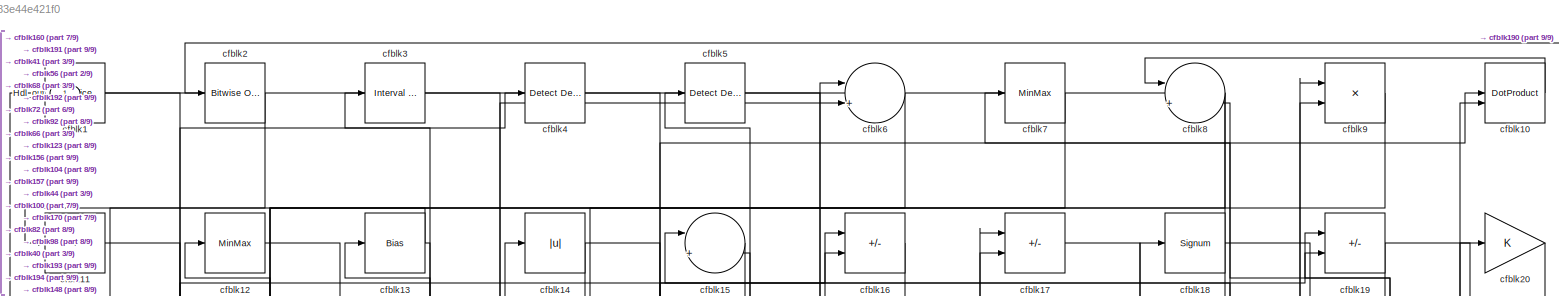
[diagram: root canvas - part 1/9, full width, top band]
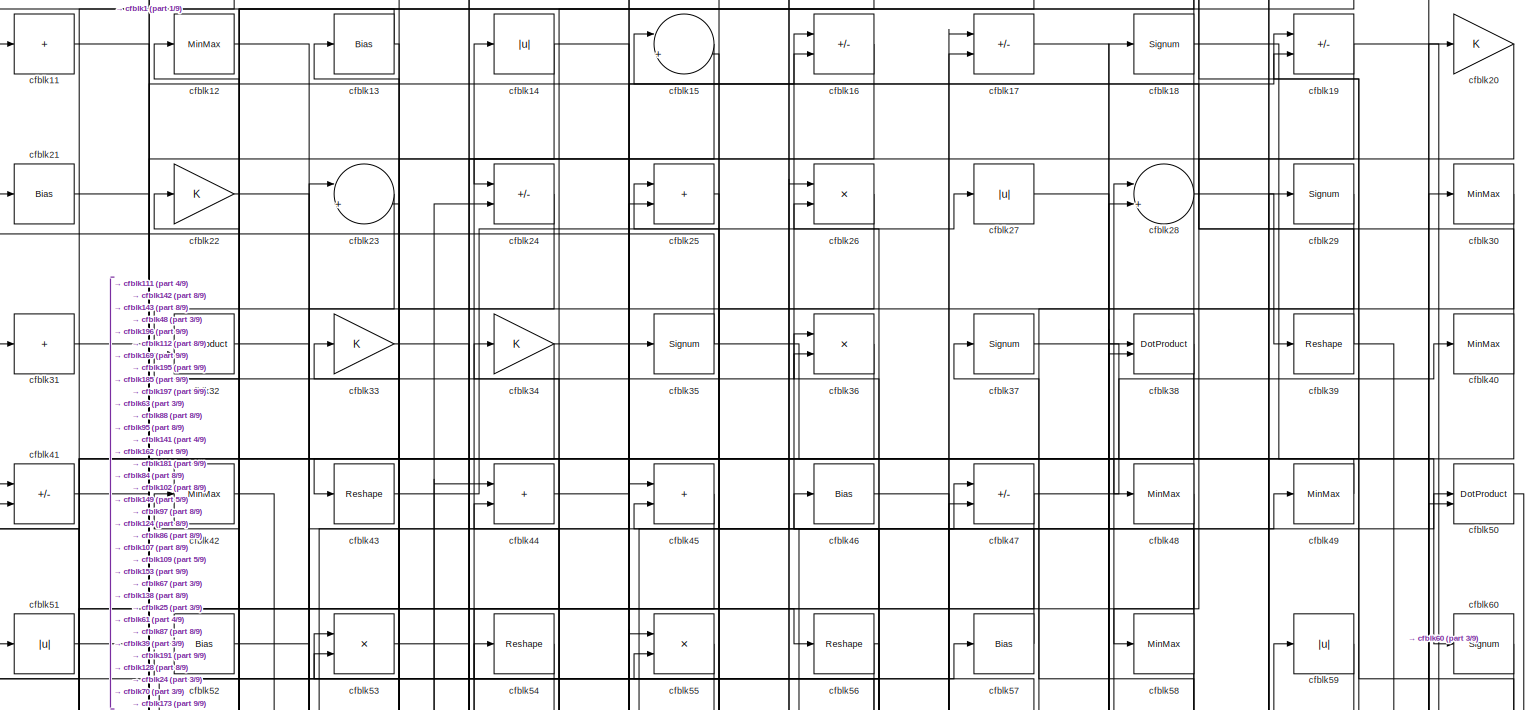
[diagram: root canvas - part 2/9, full width, top band]
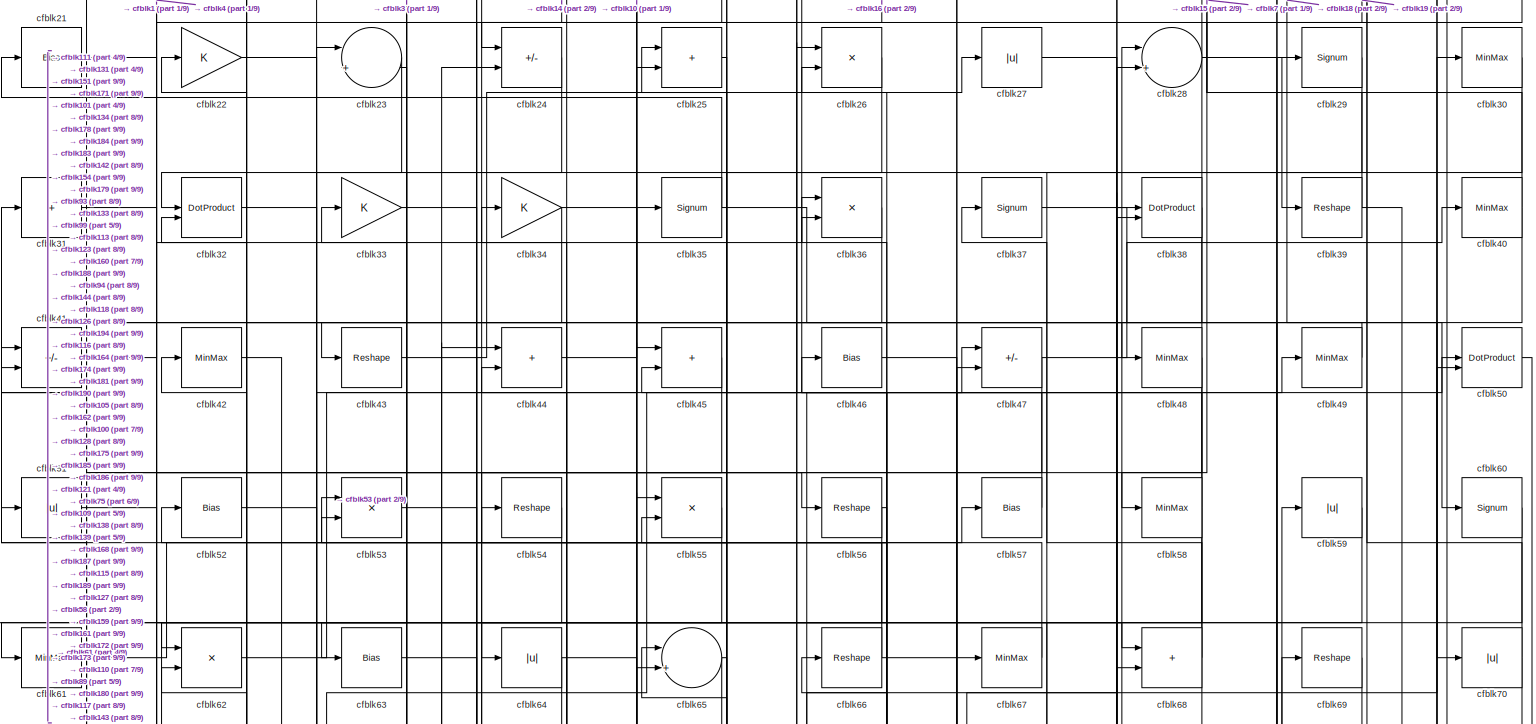
[diagram: root canvas - part 3/9, full width, top band]
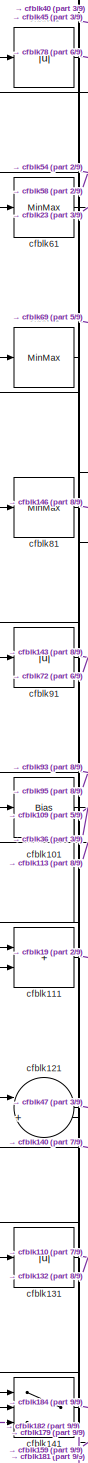
[diagram: root canvas - part 4/9, middle left region]
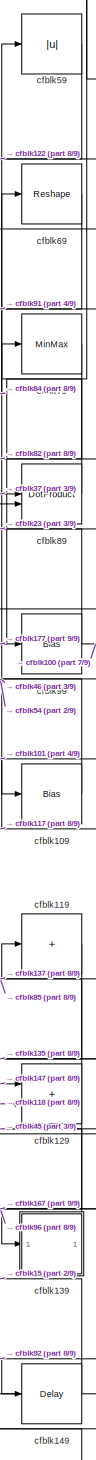
[diagram: root canvas - part 5/9, middle right region]
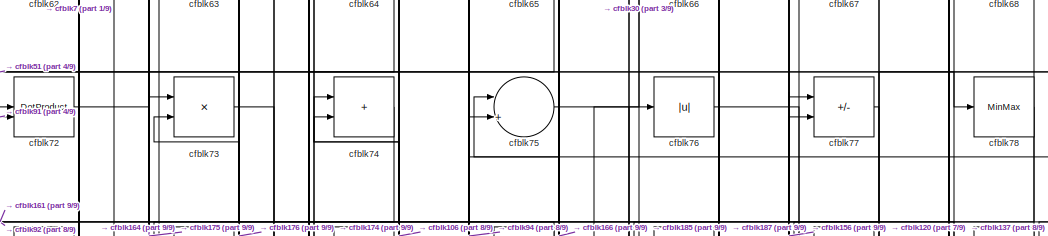
[diagram: root canvas - part 6/9, central region]
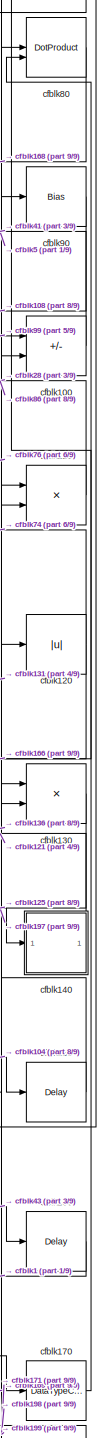
[diagram: root canvas - part 7/9, middle right region]
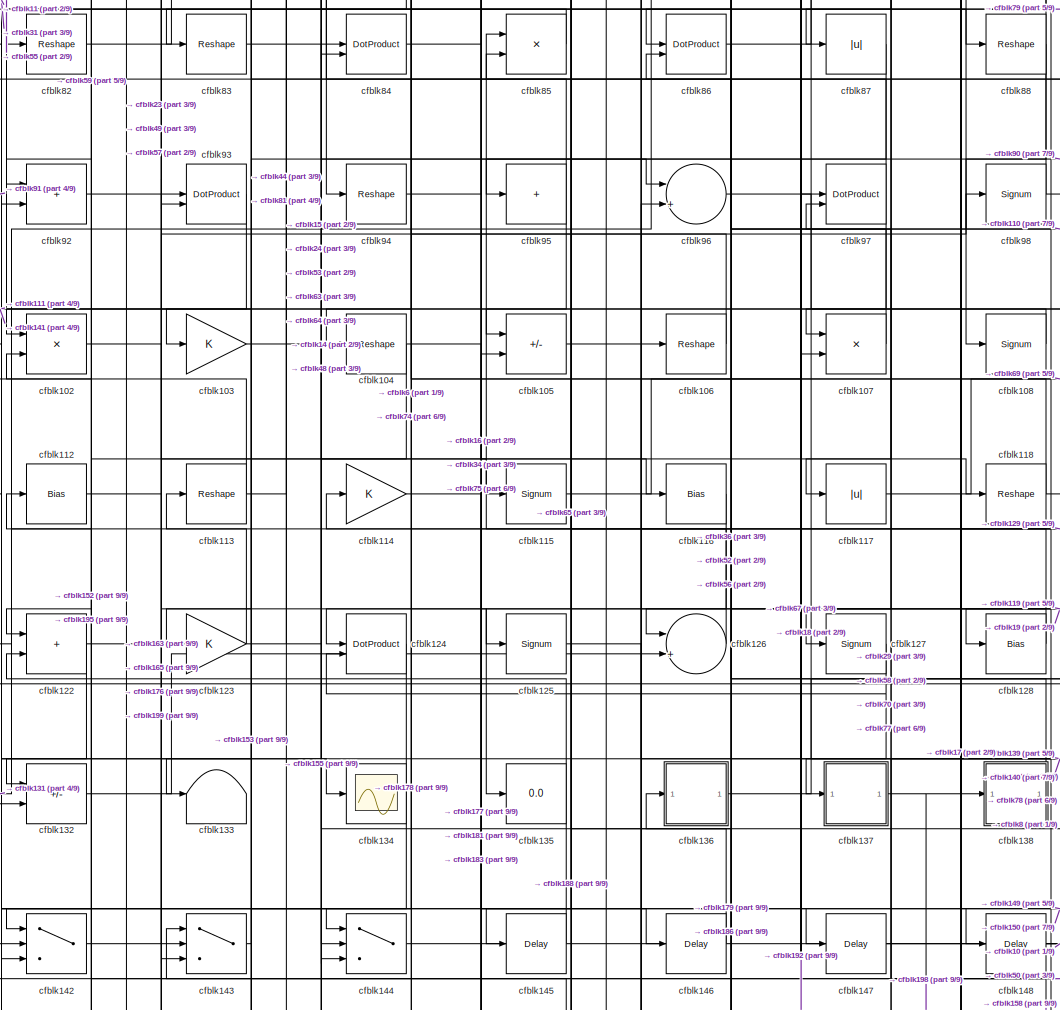
[diagram: root canvas - part 8/9, central region]
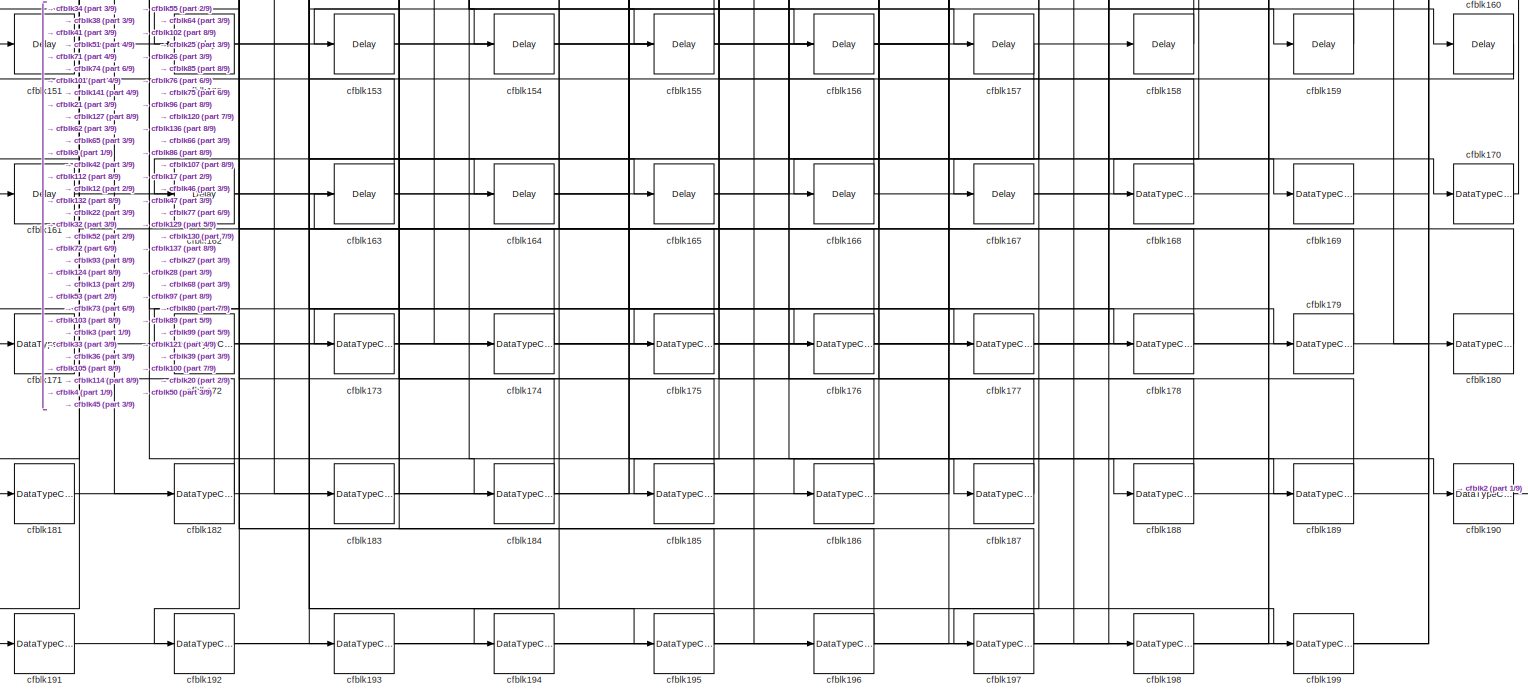
[diagram: root canvas - part 9/9, full width, bottom band]
MODEL slx_d83e44e421f0
KIND model
CONFIG AbsTol = auto
CONFIG EnableMultiTasking = off
CONFIG FixedStep = auto
CONFIG MaxStep = auto
CONFIG MinStep = auto
CONFIG RelTol = 1e-3
CONFIG SampleTimeConstraint = Unconstrained
CONFIG SolverName = VariableStepAuto
CONFIG StartTime = 0.0
CONFIG StopTime = 10.0
BLOCK [Outport] Hdl_out
  OutDataTypeStr = uint8
BLOCK [Reference] cfblk1  REF=hdlsllib/Logic and Bit
Operations/Bit Slice
  SourceBlock = hdlsllib/Logic and Bit\nOperations/Bit Slice
  SourceType = Bit Slice
BLOCK [DotProduct] cfblk10
  OutDataTypeStr = uint8
BLOCK [Sum] cfblk100
  IconShape = rectangular
  Inputs = +-
  OutDataTypeStr = uint8
BLOCK [Bias] cfblk101
  Bias = 0.0
  SaturateOnIntegerOverflow = off
BLOCK [Product] cfblk102
  Inputs = */
  OutDataTypeStr = uint8
  RndMeth = Zero
  SaturateOnIntegerOverflow = on
BLOCK [Gain] cfblk103
  OutDataTypeStr = uint8
BLOCK [Reshape] cfblk104
BLOCK [Sum] cfblk105
  IconShape = rectangular
  Inputs = +-
  OutDataTypeStr = uint8
BLOCK [Reshape] cfblk106
BLOCK [Product] cfblk107
  Inputs = */
  OutDataTypeStr = uint8
  RndMeth = Zero
  SaturateOnIntegerOverflow = on
BLOCK [Signum] cfblk108
BLOCK [Bias] cfblk109
  Bias = 0.0
  SaturateOnIntegerOverflow = off
BLOCK [Sum] cfblk11
  IconShape = rectangular
  Inputs = +
  OutDataTypeStr = uint8
BLOCK [Product] cfblk110
  Inputs = */
  OutDataTypeStr = uint8
  RndMeth = Zero
  SaturateOnIntegerOverflow = on
BLOCK [Sum] cfblk111
  IconShape = rectangular
  OutDataTypeStr = uint8
BLOCK [Bias] cfblk112
  Bias = 0.0
  SaturateOnIntegerOverflow = off
BLOCK [Reshape] cfblk113
BLOCK [Gain] cfblk114
  OutDataTypeStr = uint8
BLOCK [Signum] cfblk115
BLOCK [Bias] cfblk116
  Bias = 0.0
  SaturateOnIntegerOverflow = off
BLOCK [Abs] cfblk117
  OutDataTypeStr = uint8
  SaturateOnIntegerOverflow = off
BLOCK [Reshape] cfblk118
BLOCK [Sum] cfblk119
  IconShape = rectangular
  Inputs = +
  OutDataTypeStr = uint8
BLOCK [MinMax] cfblk12
  OutDataTypeStr = uint8
BLOCK [Abs] cfblk120
  OutDataTypeStr = uint8
  SaturateOnIntegerOverflow = off
BLOCK [Sum] cfblk121
  Inputs = |++
  OutDataTypeStr = uint8
BLOCK [Sum] cfblk122
  IconShape = rectangular
  OutDataTypeStr = uint8
BLOCK [Gain] cfblk123
  OutDataTypeStr = uint8
BLOCK [DotProduct] cfblk124
  OutDataTypeStr = uint8
BLOCK [Signum] cfblk125
BLOCK [Sum] cfblk126
  Inputs = |++
  OutDataTypeStr = uint8
BLOCK [Signum] cfblk127
BLOCK [Bias] cfblk128
  Bias = 0.0
  SaturateOnIntegerOverflow = off
BLOCK [Sum] cfblk129
  IconShape = rectangular
  OutDataTypeStr = uint8
BLOCK [Bias] cfblk13
  Bias = 0.0
  SaturateOnIntegerOverflow = off
BLOCK [Product] cfblk130
  Inputs = */
  OutDataTypeStr = uint8
  RndMeth = Zero
  SaturateOnIntegerOverflow = on
BLOCK [Abs] cfblk131
  OutDataTypeStr = uint8
  SaturateOnIntegerOverflow = off
BLOCK [Sum] cfblk132
  IconShape = rectangular
  Inputs = +-
  OutDataTypeStr = uint8
BLOCK [Terminator] cfblk133
BLOCK [Scope] cfblk134
  Floating = off
  NumInputPorts = 1
  ScopeSpecificationString = Simulink.scopes.TimeScopeBlockCfg('CurrentConfiguration', extmgr.ConfigurationSet(extmgr.Configuration('Core','General UI',true),extmgr.Configuration('Core','Source UI',true),extmgr.Configuration('Sources','WiredSimulink',true,'DataLoggingVariableName','ScopeData2','DataLoggingSaveFormat','Array','DataLoggingLimitDataPoints',true,'DataLoggingDecimation','1'),extmgr.Configuration('Visuals','Time Do...<+868ch>
BLOCK [Display] cfblk135
  Decimation = 1
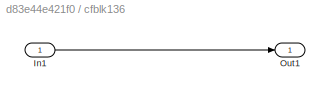
BLOCK [SubSystem] cfblk136
  LibrarySourceBlock = hdlsllib/Ports &\nSubsystems/Subsystem
BLOCK [Inport] cfblk136/In1
BLOCK [Outport] cfblk136/Out1
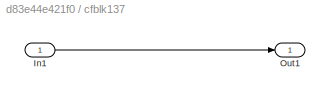
BLOCK [SubSystem] cfblk137
  LibrarySourceBlock = hdlsllib/Ports &\nSubsystems/Subsystem
BLOCK [Inport] cfblk137/In1
BLOCK [Outport] cfblk137/Out1
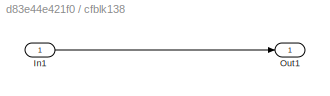
BLOCK [SubSystem] cfblk138
  LibrarySourceBlock = hdlsllib/Ports &\nSubsystems/Subsystem
BLOCK [Inport] cfblk138/In1
BLOCK [Outport] cfblk138/Out1
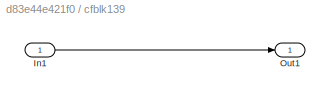
BLOCK [SubSystem] cfblk139
  LibrarySourceBlock = hdlsllib/Ports &\nSubsystems/Subsystem
BLOCK [Inport] cfblk139/In1
BLOCK [Outport] cfblk139/Out1
BLOCK [Abs] cfblk14
  OutDataTypeStr = uint8
  SaturateOnIntegerOverflow = off
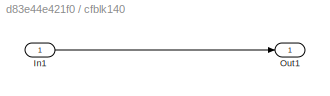
BLOCK [SubSystem] cfblk140
  LibrarySourceBlock = hdlsllib/Ports &\nSubsystems/Subsystem
BLOCK [Inport] cfblk140/In1
BLOCK [Outport] cfblk140/Out1
BLOCK [Switch] cfblk141
  InputSameDT = off
  OutDataTypeStr = uint8
  SaturateOnIntegerOverflow = off
BLOCK [Switch] cfblk142
  InputSameDT = off
  OutDataTypeStr = uint8
  SaturateOnIntegerOverflow = off
BLOCK [Switch] cfblk143
  InputSameDT = off
  OutDataTypeStr = uint8
  SaturateOnIntegerOverflow = off
BLOCK [Switch] cfblk144
  InputSameDT = off
  OutDataTypeStr = uint8
  SaturateOnIntegerOverflow = off
BLOCK [Delay] cfblk145
  InputPortMap = u0
  SampleTime = 1
BLOCK [Delay] cfblk146
  InputPortMap = u0
  SampleTime = 1
BLOCK [Delay] cfblk147
  InputPortMap = u0
  SampleTime = 1
BLOCK [Delay] cfblk148
  InputPortMap = u0
  SampleTime = 1
BLOCK [Delay] cfblk149
  InputPortMap = u0
  SampleTime = 1
BLOCK [Sum] cfblk15
  Inputs = |++
  OutDataTypeStr = uint8
BLOCK [Delay] cfblk150
  InputPortMap = u0
  SampleTime = 1
BLOCK [Delay] cfblk151
  InputPortMap = u0
  SampleTime = 1
BLOCK [Delay] cfblk152
  InputPortMap = u0
  SampleTime = 1
BLOCK [Delay] cfblk153
  InputPortMap = u0
  SampleTime = 1
BLOCK [Delay] cfblk154
  InputPortMap = u0
  SampleTime = 1
BLOCK [Delay] cfblk155
  InputPortMap = u0
  SampleTime = 1
BLOCK [Delay] cfblk156
  InputPortMap = u0
  SampleTime = 1
BLOCK [Delay] cfblk157
  InputPortMap = u0
  SampleTime = 1
BLOCK [Delay] cfblk158
  InputPortMap = u0
  SampleTime = 1
BLOCK [Delay] cfblk159
  InputPortMap = u0
  SampleTime = 1
BLOCK [Sum] cfblk16
  IconShape = rectangular
  Inputs = +-
  OutDataTypeStr = uint8
BLOCK [Delay] cfblk160
  InputPortMap = u0
  SampleTime = 1
BLOCK [Delay] cfblk161
  InputPortMap = u0
  SampleTime = 1
BLOCK [Delay] cfblk162
  InputPortMap = u0
  SampleTime = 1
BLOCK [Delay] cfblk163
  InputPortMap = u0
  SampleTime = 1
BLOCK [Delay] cfblk164
  InputPortMap = u0
  SampleTime = 1
BLOCK [Delay] cfblk165
  InputPortMap = u0
  SampleTime = 1
BLOCK [Delay] cfblk166
  InputPortMap = u0
  SampleTime = 1
BLOCK [Delay] cfblk167
  InputPortMap = u0
  SampleTime = 1
BLOCK [DataTypeConversion] cfblk168
  OutDataTypeStr = uint8
  RndMeth = Floor
  SaturateOnIntegerOverflow = off
BLOCK [DataTypeConversion] cfblk169
  OutDataTypeStr = uint8
  RndMeth = Floor
  SaturateOnIntegerOverflow = off
BLOCK [Sum] cfblk17
  IconShape = rectangular
  Inputs = +-
  OutDataTypeStr = uint8
BLOCK [DataTypeConversion] cfblk170
  OutDataTypeStr = uint8
  RndMeth = Floor
  SaturateOnIntegerOverflow = off
BLOCK [DataTypeConversion] cfblk171
  OutDataTypeStr = uint8
  RndMeth = Floor
  SaturateOnIntegerOverflow = off
BLOCK [DataTypeConversion] cfblk172
  OutDataTypeStr = uint8
  RndMeth = Floor
  SaturateOnIntegerOverflow = off
BLOCK [DataTypeConversion] cfblk173
  OutDataTypeStr = uint8
  RndMeth = Floor
  SaturateOnIntegerOverflow = off
BLOCK [DataTypeConversion] cfblk174
  OutDataTypeStr = uint8
  RndMeth = Floor
  SaturateOnIntegerOverflow = off
BLOCK [DataTypeConversion] cfblk175
  OutDataTypeStr = uint8
  RndMeth = Floor
  SaturateOnIntegerOverflow = off
BLOCK [DataTypeConversion] cfblk176
  OutDataTypeStr = uint8
  RndMeth = Floor
  SaturateOnIntegerOverflow = off
BLOCK [DataTypeConversion] cfblk177
  OutDataTypeStr = uint8
  RndMeth = Floor
  SaturateOnIntegerOverflow = off
BLOCK [DataTypeConversion] cfblk178
  OutDataTypeStr = uint8
  RndMeth = Floor
  SaturateOnIntegerOverflow = off
BLOCK [DataTypeConversion] cfblk179
  OutDataTypeStr = uint8
  RndMeth = Floor
  SaturateOnIntegerOverflow = off
BLOCK [Signum] cfblk18
BLOCK [DataTypeConversion] cfblk180
  OutDataTypeStr = uint8
  RndMeth = Floor
  SaturateOnIntegerOverflow = off
BLOCK [DataTypeConversion] cfblk181
  OutDataTypeStr = uint8
  RndMeth = Floor
  SaturateOnIntegerOverflow = off
BLOCK [DataTypeConversion] cfblk182
  OutDataTypeStr = uint8
  RndMeth = Floor
  SaturateOnIntegerOverflow = off
BLOCK [DataTypeConversion] cfblk183
  OutDataTypeStr = uint8
  RndMeth = Floor
  SaturateOnIntegerOverflow = off
BLOCK [DataTypeConversion] cfblk184
  OutDataTypeStr = uint8
  RndMeth = Floor
  SaturateOnIntegerOverflow = off
BLOCK [DataTypeConversion] cfblk185
  OutDataTypeStr = uint8
  RndMeth = Floor
  SaturateOnIntegerOverflow = off
BLOCK [DataTypeConversion] cfblk186
  OutDataTypeStr = uint8
  RndMeth = Floor
  SaturateOnIntegerOverflow = off
BLOCK [DataTypeConversion] cfblk187
  OutDataTypeStr = uint8
  RndMeth = Floor
  SaturateOnIntegerOverflow = off
BLOCK [DataTypeConversion] cfblk188
  OutDataTypeStr = uint8
  RndMeth = Floor
  SaturateOnIntegerOverflow = off
BLOCK [DataTypeConversion] cfblk189
  OutDataTypeStr = uint8
  RndMeth = Floor
  SaturateOnIntegerOverflow = off
BLOCK [Sum] cfblk19
  IconShape = rectangular
  Inputs = +-
  OutDataTypeStr = uint8
BLOCK [DataTypeConversion] cfblk190
  OutDataTypeStr = uint8
  RndMeth = Floor
  SaturateOnIntegerOverflow = off
BLOCK [DataTypeConversion] cfblk191
  OutDataTypeStr = uint8
  RndMeth = Floor
  SaturateOnIntegerOverflow = off
BLOCK [DataTypeConversion] cfblk192
  OutDataTypeStr = uint8
  RndMeth = Floor
  SaturateOnIntegerOverflow = off
BLOCK [DataTypeConversion] cfblk193
  OutDataTypeStr = uint8
  RndMeth = Floor
  SaturateOnIntegerOverflow = off
BLOCK [DataTypeConversion] cfblk194
  OutDataTypeStr = uint8
  RndMeth = Floor
  SaturateOnIntegerOverflow = off
BLOCK [DataTypeConversion] cfblk195
  OutDataTypeStr = uint8
  RndMeth = Floor
  SaturateOnIntegerOverflow = off
BLOCK [DataTypeConversion] cfblk196
  OutDataTypeStr = uint8
  RndMeth = Floor
  SaturateOnIntegerOverflow = off
BLOCK [DataTypeConversion] cfblk197
  OutDataTypeStr = uint8
  RndMeth = Floor
  SaturateOnIntegerOverflow = off
BLOCK [DataTypeConversion] cfblk198
  OutDataTypeStr = uint8
  RndMeth = Floor
  SaturateOnIntegerOverflow = off
BLOCK [DataTypeConversion] cfblk199
  OutDataTypeStr = uint8
  RndMeth = Floor
  SaturateOnIntegerOverflow = off
BLOCK [Reference] cfblk2  REF=simulink/Logic and Bit
Operations/Bitwise
Operator
  LibrarySourceBlock = hdlsllib/Logic and Bit\nOperations/Bitwise\nOperator
  SourceBlock = simulink/Logic and Bit\nOperations/Bitwise\nOperator
  SourceType = Bitwise Operator
BLOCK [Gain] cfblk20
  OutDataTypeStr = uint8
BLOCK [Bias] cfblk21
  Bias = 0.0
  SaturateOnIntegerOverflow = off
BLOCK [Gain] cfblk22
  OutDataTypeStr = uint8
BLOCK [Sum] cfblk23
  Inputs = |++
  OutDataTypeStr = uint8
BLOCK [Sum] cfblk24
  IconShape = rectangular
  Inputs = +-
  OutDataTypeStr = uint8
BLOCK [Sum] cfblk25
  IconShape = rectangular
  OutDataTypeStr = uint8
BLOCK [Product] cfblk26
  Inputs = */
  OutDataTypeStr = uint8
  RndMeth = Zero
  SaturateOnIntegerOverflow = on
BLOCK [Abs] cfblk27
  OutDataTypeStr = uint8
  SaturateOnIntegerOverflow = off
BLOCK [Sum] cfblk28
  Inputs = |++
  OutDataTypeStr = uint8
BLOCK [Signum] cfblk29
BLOCK [Reference] cfblk3  REF=hdlsllib/Logic and Bit
Operations/Interval Test
  SourceBlock = hdlsllib/Logic and Bit\nOperations/Interval Test
  SourceType = Interval Test
BLOCK [MinMax] cfblk30
  OutDataTypeStr = uint8
BLOCK [Sum] cfblk31
  IconShape = rectangular
  Inputs = +
  OutDataTypeStr = uint8
BLOCK [DotProduct] cfblk32
  OutDataTypeStr = uint8
BLOCK [Gain] cfblk33
  OutDataTypeStr = uint8
BLOCK [Gain] cfblk34
  OutDataTypeStr = uint8
BLOCK [Signum] cfblk35
BLOCK [Product] cfblk36
  Inputs = */
  OutDataTypeStr = uint8
  RndMeth = Zero
  SaturateOnIntegerOverflow = on
BLOCK [Signum] cfblk37
BLOCK [DotProduct] cfblk38
  OutDataTypeStr = uint8
BLOCK [Reshape] cfblk39
BLOCK [Reference] cfblk4  REF=simulink/Logic and Bit
Operations/Detect
Decrease
  LibrarySourceBlock = hdlsllib/Logic and Bit\nOperations/Detect\nDecrease
  SourceBlock = simulink/Logic and Bit\nOperations/Detect\nDecrease
  SourceType = Detect Decrease
BLOCK [MinMax] cfblk40
  OutDataTypeStr = uint8
BLOCK [Sum] cfblk41
  IconShape = rectangular
  Inputs = +-
  OutDataTypeStr = uint8
BLOCK [MinMax] cfblk42
  OutDataTypeStr = uint8
BLOCK [Reshape] cfblk43
BLOCK [Sum] cfblk44
  IconShape = rectangular
  OutDataTypeStr = uint8
BLOCK [Sum] cfblk45
  IconShape = rectangular
  OutDataTypeStr = uint8
BLOCK [Bias] cfblk46
  Bias = 0.0
  SaturateOnIntegerOverflow = off
BLOCK [Sum] cfblk47
  IconShape = rectangular
  Inputs = +-
  OutDataTypeStr = uint8
BLOCK [MinMax] cfblk48
  OutDataTypeStr = uint8
BLOCK [MinMax] cfblk49
  OutDataTypeStr = uint8
BLOCK [Reference] cfblk5  REF=simulink/Logic and Bit
Operations/Detect
Decrease
  LibrarySourceBlock = hdlsllib/Logic and Bit\nOperations/Detect\nDecrease
  SourceBlock = simulink/Logic and Bit\nOperations/Detect\nDecrease
  SourceType = Detect Decrease
BLOCK [DotProduct] cfblk50
  OutDataTypeStr = uint8
BLOCK [Abs] cfblk51
  OutDataTypeStr = uint8
  SaturateOnIntegerOverflow = off
BLOCK [Bias] cfblk52
  Bias = 0.0
  SaturateOnIntegerOverflow = off
BLOCK [Product] cfblk53
  Inputs = */
  OutDataTypeStr = uint8
  RndMeth = Zero
  SaturateOnIntegerOverflow = on
BLOCK [Reshape] cfblk54
BLOCK [Product] cfblk55
  Inputs = */
  OutDataTypeStr = uint8
  RndMeth = Zero
  SaturateOnIntegerOverflow = on
BLOCK [Reshape] cfblk56
BLOCK [Bias] cfblk57
  Bias = 0.0
  SaturateOnIntegerOverflow = off
BLOCK [MinMax] cfblk58
  OutDataTypeStr = uint8
BLOCK [Abs] cfblk59
  OutDataTypeStr = uint8
  SaturateOnIntegerOverflow = off
BLOCK [Sum] cfblk6
  Inputs = |++
  OutDataTypeStr = uint8
BLOCK [Signum] cfblk60
BLOCK [MinMax] cfblk61
  OutDataTypeStr = uint8
BLOCK [Product] cfblk62
  Inputs = */
  OutDataTypeStr = uint8
  RndMeth = Zero
  SaturateOnIntegerOverflow = on
BLOCK [Bias] cfblk63
  Bias = 0.0
  SaturateOnIntegerOverflow = off
BLOCK [Abs] cfblk64
  OutDataTypeStr = uint8
  SaturateOnIntegerOverflow = off
BLOCK [Sum] cfblk65
  Inputs = |++
  OutDataTypeStr = uint8
BLOCK [Reshape] cfblk66
BLOCK [MinMax] cfblk67
  OutDataTypeStr = uint8
BLOCK [Sum] cfblk68
  IconShape = rectangular
  OutDataTypeStr = uint8
BLOCK [Reshape] cfblk69
BLOCK [MinMax] cfblk7
  OutDataTypeStr = uint8
BLOCK [Abs] cfblk70
  OutDataTypeStr = uint8
  SaturateOnIntegerOverflow = off
BLOCK [MinMax] cfblk71
  OutDataTypeStr = uint8
BLOCK [DotProduct] cfblk72
  OutDataTypeStr = uint8
BLOCK [Product] cfblk73
  Inputs = */
  OutDataTypeStr = uint8
  RndMeth = Zero
  SaturateOnIntegerOverflow = on
BLOCK [Sum] cfblk74
  IconShape = rectangular
  OutDataTypeStr = uint8
BLOCK [Sum] cfblk75
  Inputs = |++
  OutDataTypeStr = uint8
BLOCK [Abs] cfblk76
  OutDataTypeStr = uint8
  SaturateOnIntegerOverflow = off
BLOCK [Sum] cfblk77
  IconShape = rectangular
  Inputs = +-
  OutDataTypeStr = uint8
BLOCK [MinMax] cfblk78
  OutDataTypeStr = uint8
BLOCK [MinMax] cfblk79
  OutDataTypeStr = uint8
BLOCK [Sum] cfblk8
  Inputs = |++
  OutDataTypeStr = uint8
BLOCK [DotProduct] cfblk80
  OutDataTypeStr = uint8
BLOCK [MinMax] cfblk81
  OutDataTypeStr = uint8
BLOCK [Reshape] cfblk82
BLOCK [Reshape] cfblk83
BLOCK [DotProduct] cfblk84
  OutDataTypeStr = uint8
BLOCK [Product] cfblk85
  Inputs = */
  OutDataTypeStr = uint8
  RndMeth = Zero
  SaturateOnIntegerOverflow = on
BLOCK [DotProduct] cfblk86
  OutDataTypeStr = uint8
BLOCK [Abs] cfblk87
  OutDataTypeStr = uint8
  SaturateOnIntegerOverflow = off
BLOCK [Reshape] cfblk88
BLOCK [DotProduct] cfblk89
  OutDataTypeStr = uint8
BLOCK [Product] cfblk9
  Inputs = */
  OutDataTypeStr = uint8
  RndMeth = Zero
  SaturateOnIntegerOverflow = on
BLOCK [Bias] cfblk90
  Bias = 0.0
  SaturateOnIntegerOverflow = off
BLOCK [Abs] cfblk91
  OutDataTypeStr = uint8
  SaturateOnIntegerOverflow = off
BLOCK [Sum] cfblk92
  IconShape = rectangular
  OutDataTypeStr = uint8
BLOCK [DotProduct] cfblk93
  OutDataTypeStr = uint8
BLOCK [Reshape] cfblk94
BLOCK [Sum] cfblk95
  IconShape = rectangular
  Inputs = +
  OutDataTypeStr = uint8
BLOCK [Sum] cfblk96
  Inputs = |++
  OutDataTypeStr = uint8
BLOCK [DotProduct] cfblk97
  OutDataTypeStr = uint8
BLOCK [Signum] cfblk98
BLOCK [Bias] cfblk99
  Bias = 0.0
  SaturateOnIntegerOverflow = off
NET cfblk100:1 -> cfblk41:1, cfblk5:1
NET cfblk101:1 -> cfblk109:1, cfblk141:3, cfblk182:1, cfblk36:2
LINE cfblk102:1 -> cfblk118:1
LINE cfblk103:1 -> cfblk155:1
NET cfblk104:1 -> cfblk132:1, cfblk150:1
LINE cfblk105:1 -> cfblk106:1
LINE cfblk106:1 -> cfblk74:1
LINE cfblk107:1 -> cfblk52:1
LINE cfblk108:1 -> cfblk107:1
NET cfblk109:1 -> cfblk46:1, cfblk54:1
LINE cfblk10:1 -> cfblk8:1
NET cfblk110:1 -> cfblk28:1, cfblk86:2
LINE cfblk111:1 -> cfblk19:1
NET cfblk112:1 -> cfblk144:2, cfblk165:1, cfblk199:1, cfblk57:1
NET cfblk113:1 -> cfblk44:1, cfblk81:1
LINE cfblk114:1 -> cfblk177:1
LINE cfblk115:1 -> cfblk67:1
LINE cfblk116:1 -> cfblk144:1
LINE cfblk117:1 -> cfblk69:1
NET cfblk118:1 -> cfblk129:2, cfblk44:2
LINE cfblk119:1 -> cfblk135:1
LINE cfblk11:1 -> cfblk143:3
NET cfblk120:1 -> cfblk166:1, cfblk74:2
LINE cfblk121:1 -> cfblk47:1
NET cfblk122:1 -> cfblk125:1, cfblk142:3, cfblk98:1
NET cfblk123:1 -> cfblk113:1, cfblk24:2, cfblk6:2
LINE cfblk124:1 -> cfblk153:1
LINE cfblk125:1 -> cfblk140:1
LINE cfblk126:1 -> cfblk34:1
NET cfblk127:1 -> cfblk124:2, cfblk152:1
NET cfblk128:1 -> cfblk126:1, cfblk65:1
NET cfblk129:1 -> cfblk167:1, cfblk85:1
LINE cfblk12:1 -> cfblk195:1
LINE cfblk130:1 -> cfblk197:1
NET cfblk131:1 -> cfblk110:2, cfblk132:2
NET cfblk132:1 -> cfblk126:2, cfblk176:1
LINE cfblk136/In1:1 -> cfblk136/Out1:1
LINE cfblk136:1 -> cfblk90:1
LINE cfblk137/In1:1 -> cfblk137/Out1:1
NET cfblk137:1 -> cfblk119:1, cfblk198:1
LINE cfblk138/In1:1 -> cfblk138/Out1:1
LINE cfblk138:1 -> cfblk36:1
LINE cfblk139/In1:1 -> cfblk139/Out1:1
LINE cfblk139:1 -> cfblk45:2
NET cfblk13:1 -> cfblk11:1, cfblk173:1
LINE cfblk140/In1:1 -> cfblk140/Out1:1
LINE cfblk140:1 -> cfblk121:1
LINE cfblk141:1 -> cfblk184:1
LINE cfblk142:1 -> cfblk49:1
LINE cfblk143:1 -> cfblk103:1
LINE cfblk144:1 -> cfblk29:1
LINE cfblk145:1 -> cfblk122:2
LINE cfblk146:1 -> cfblk84:1
LINE cfblk147:1 -> cfblk129:1
LINE cfblk148:1 -> cfblk10:2
LINE cfblk149:1 -> cfblk15:2
NET cfblk14:1 -> cfblk142:2, cfblk48:1
LINE cfblk150:1 -> cfblk110:1
LINE cfblk151:1 -> cfblk68:2
LINE cfblk152:1 -> cfblk193:1
LINE cfblk153:1 -> cfblk17:2
LINE cfblk154:1 -> cfblk47:2
LINE cfblk155:1 -> cfblk102:2
LINE cfblk156:1 -> cfblk77:1
LINE cfblk157:1 -> cfblk172:1
LINE cfblk158:1 -> cfblk97:2
LINE cfblk159:1 -> cfblk121:2
LINE cfblk15:1 -> cfblk84:2
LINE cfblk160:1 -> cfblk1:1
LINE cfblk161:1 -> cfblk28:2
LINE cfblk162:1 -> cfblk55:1
LINE cfblk163:1 -> cfblk93:1
LINE cfblk164:1 -> cfblk45:1
LINE cfblk165:1 -> cfblk96:2
LINE cfblk166:1 -> cfblk75:1
LINE cfblk167:1 -> cfblk89:2
LINE cfblk168:1 -> cfblk66:1
LINE cfblk169:1 -> cfblk80:1
LINE cfblk16:1 -> cfblk63:1
LINE cfblk170:1 -> cfblk80:2
LINE cfblk171:1 -> cfblk100:2
LINE cfblk172:1 -> cfblk38:1
LINE cfblk173:1 -> cfblk38:2
NET cfblk174:1 -> cfblk32:2, cfblk65:2, cfblk77:2
LINE cfblk175:1 -> cfblk73:1
LINE cfblk176:1 -> cfblk73:2
LINE cfblk177:1 -> cfblk99:1
LINE cfblk178:1 -> cfblk114:1
NET cfblk179:1 -> cfblk136:1, cfblk41:2, cfblk51:1, cfblk62:2
LINE cfblk17:1 -> cfblk138:1
LINE cfblk180:1 -> cfblk22:1
NET cfblk181:1 -> cfblk107:2, cfblk17:1, cfblk25:2
LINE cfblk182:1 -> cfblk71:1
NET cfblk183:1 -> cfblk105:2, cfblk163:1
LINE cfblk184:1 -> cfblk42:1
NET cfblk185:1 -> cfblk196:1, cfblk53:2, cfblk76:1
LINE cfblk186:1 -> cfblk26:1
LINE cfblk187:1 -> cfblk26:2
NET cfblk188:1 -> cfblk50:2, cfblk85:2
LINE cfblk189:1 -> cfblk33:1
LINE cfblk18:1 -> cfblk60:1
LINE cfblk190:1 -> cfblk2:1
LINE cfblk191:1 -> cfblk20:1
LINE cfblk192:1 -> cfblk97:1
LINE cfblk193:1 -> cfblk9:1
LINE cfblk194:1 -> cfblk9:2
LINE cfblk195:1 -> cfblk112:1
LINE cfblk196:1 -> cfblk12:1
NET cfblk197:1 -> cfblk13:1, cfblk158:1
LINE cfblk198:1 -> cfblk130:1
LINE cfblk199:1 -> cfblk130:2
NET cfblk19:1 -> cfblk128:1, cfblk24:1
NET cfblk1:1 -> cfblk56:1, cfblk68:1
LINE cfblk20:1 -> cfblk58:1
LINE cfblk21:1 -> cfblk178:1
LINE cfblk22:1 -> cfblk179:1
LINE cfblk23:1 -> cfblk93:2
LINE cfblk24:1 -> cfblk133:1
LINE cfblk25:1 -> cfblk175:1
LINE cfblk26:1 -> cfblk185:1
LINE cfblk27:1 -> cfblk159:1
LINE cfblk28:1 -> cfblk39:1
LINE cfblk29:1 -> cfblk127:1
LINE cfblk2:1 -> cfblk191:1
LINE cfblk30:1 -> cfblk32:1
LINE cfblk31:1 -> cfblk134:1
LINE cfblk32:1 -> cfblk154:1
LINE cfblk33:1 -> cfblk188:1
NET cfblk34:1 -> cfblk116:1, cfblk151:1
NET cfblk35:1 -> cfblk21:1, cfblk70:1
NET cfblk36:1 -> cfblk194:1, cfblk62:1
LINE cfblk37:1 -> cfblk89:1
LINE cfblk38:1 -> cfblk171:1
NET cfblk39:1 -> cfblk15:1, cfblk180:1
LINE cfblk3:1 -> cfblk156:1
NET cfblk40:1 -> cfblk101:1, cfblk7:1
LINE cfblk41:1 -> cfblk4:1
LINE cfblk42:1 -> cfblk183:1
NET cfblk43:1 -> cfblk160:1, cfblk27:1
LINE cfblk44:1 -> cfblk10:1
LINE cfblk45:1 -> cfblk131:1
LINE cfblk46:1 -> cfblk189:1
NET cfblk47:1 -> cfblk111:1, cfblk40:1
LINE cfblk48:1 -> cfblk94:1
LINE cfblk49:1 -> cfblk43:1
LINE cfblk4:1 -> cfblk157:1
LINE cfblk50:1 -> cfblk143:1
LINE cfblk51:1 -> cfblk78:1
LINE cfblk52:1 -> cfblk169:1
LINE cfblk53:1 -> cfblk88:1
LINE cfblk54:1 -> cfblk141:2
LINE cfblk55:1 -> cfblk102:1
NET cfblk56:1 -> cfblk124:1, cfblk86:1
LINE cfblk57:1 -> cfblk16:1
NET cfblk58:1 -> cfblk25:1, cfblk61:1, cfblk87:1
LINE cfblk59:1 -> cfblk122:1
LINE cfblk5:1 -> cfblk170:1
LINE cfblk60:1 -> cfblk64:1
LINE cfblk61:1 -> cfblk23:1
LINE cfblk62:1 -> cfblk35:1
LINE cfblk63:1 -> cfblk115:1
NET cfblk64:1 -> cfblk144:3, cfblk190:1
NET cfblk65:1 -> cfblk105:1, cfblk142:1, cfblk162:1
NET cfblk66:1 -> cfblk3:1, cfblk50:1
NET cfblk67:1 -> cfblk31:1, cfblk53:1
LINE cfblk68:1 -> cfblk37:1
LINE cfblk69:1 -> cfblk91:1
LINE cfblk6:1 -> cfblk104:1
NET cfblk70:1 -> cfblk117:1, cfblk19:2
LINE cfblk71:1 -> cfblk181:1
LINE cfblk72:1 -> cfblk164:1
LINE cfblk73:1 -> cfblk174:1
LINE cfblk74:1 -> cfblk161:1
NET cfblk75:1 -> cfblk187:1, cfblk30:1
LINE cfblk76:1 -> cfblk120:1
LINE cfblk77:1 -> cfblk137:1
LINE cfblk78:1 -> cfblk92:2
LINE cfblk79:1 -> cfblk82:1
LINE cfblk7:1 -> cfblk72:1
LINE cfblk80:1 -> cfblk168:1
LINE cfblk81:1 -> cfblk146:1
LINE cfblk82:1 -> cfblk6:1
LINE cfblk83:1 -> cfblk96:1
NET cfblk84:1 -> cfblk16:2, cfblk79:1
LINE cfblk85:1 -> cfblk83:1
NET cfblk86:1 -> cfblk186:1, cfblk18:1
LINE cfblk87:1 -> cfblk95:1
LINE cfblk88:1 -> cfblk123:1
LINE cfblk89:1 -> cfblk59:1
LINE cfblk8:1 -> cfblk92:1
LINE cfblk90:1 -> cfblk108:1
NET cfblk91:1 -> cfblk143:2, cfblk72:2
NET cfblk92:1 -> cfblk147:1, cfblk148:1, cfblk149:1
LINE cfblk93:1 -> cfblk141:1
LINE cfblk94:1 -> cfblk75:2
NET cfblk95:1 -> cfblk111:2, cfblk14:1
LINE cfblk96:1 -> cfblk139:1
NET cfblk97:1 -> cfblk145:1, cfblk55:2
NET cfblk98:1 -> Hdl_out:1, cfblk8:2
NET cfblk99:1 -> cfblk100:1, cfblk23:2
LINE cfblk9:1 -> cfblk192:1
note: NET lines group one-source signal fan-out (src -> all destinations, sorted); 1:1 wires keep LINE
